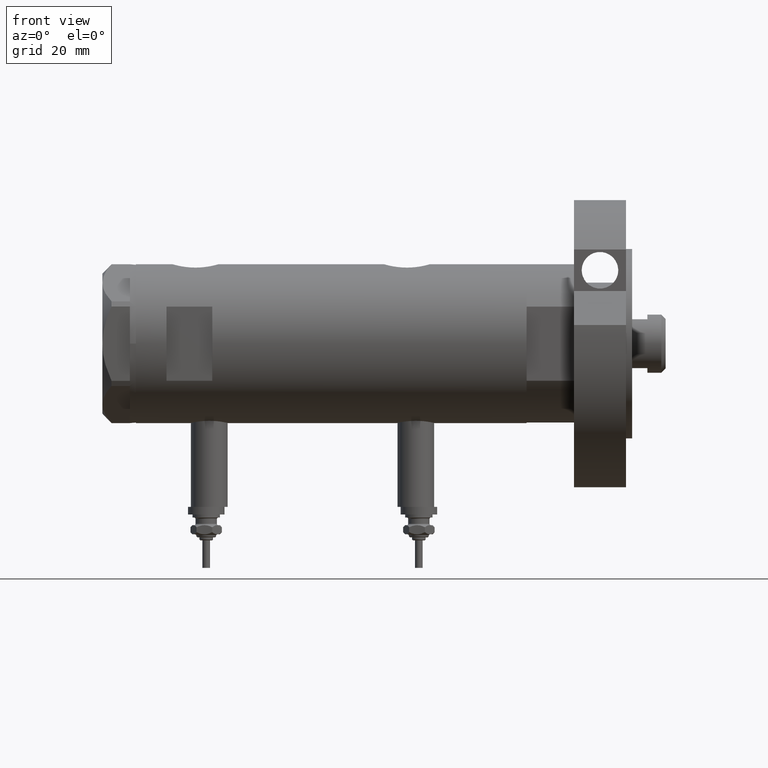
[diagram: clean part render]
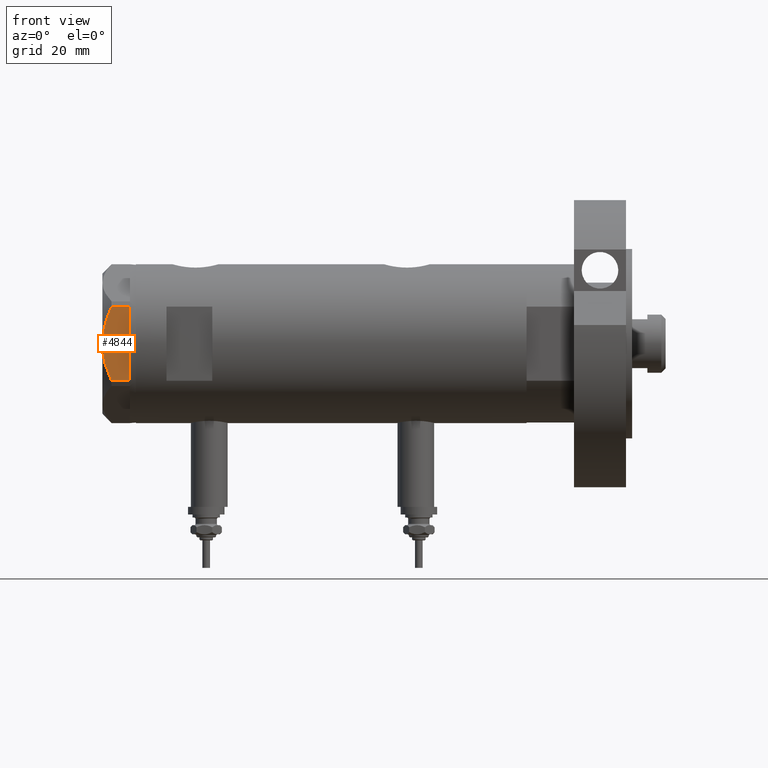
[diagram: same view with one face highlighted and labeled with its STEP entity id]
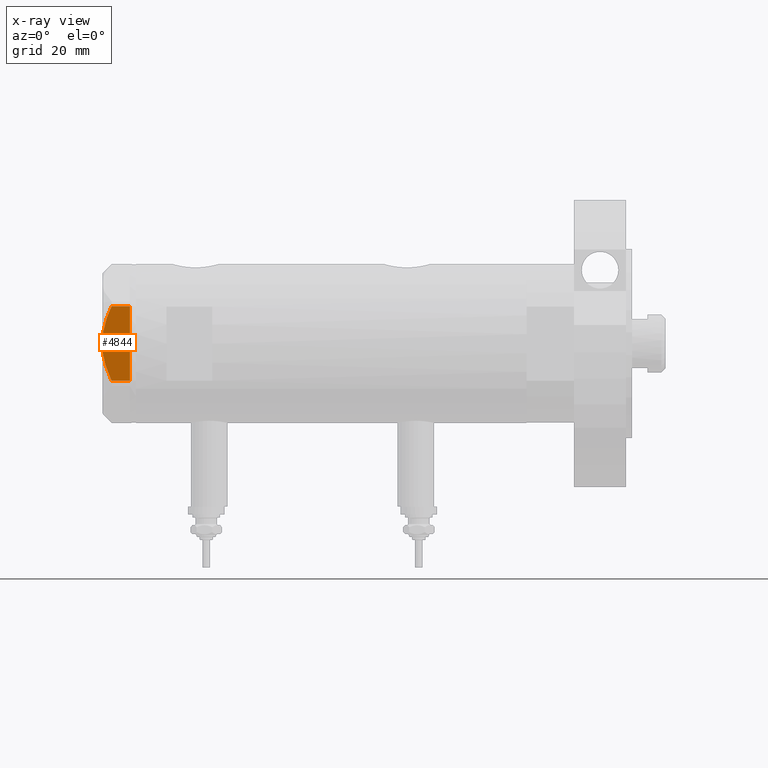
[diagram: x-ray of the same camera — body ghosted, the highlighted face saturated]
A machine part, front view. The second image highlights one B-rep face of the part: STEP entity #4844.
The next image is the same camera in x-ray: the body ghosted, the highlighted face saturated — about 0% of this face is hidden behind the body in this view.
In plain terms, the highlighted planar face has unit normal (-0, 1, -0).
Its self-contained STEP definition (entity closure, byte-faithful):
#17 = VERTEX_POINT ( 'NONE', #3609 ) ;
#65 = CARTESIAN_POINT ( 'NONE',  ( -22.99999999999995737, -0.5295934231897764244, 9.000000000000092371 ) ) ;
#186 = CARTESIAN_POINT ( 'NONE',  ( -22.99999999999999645, 13.27905619136132032, 9.000000000000000000 ) ) ;
#194 = DIRECTION ( 'NONE',  ( 3.527173405730720141E-15, -1.000000000000000000, 0.000000000000000000 ) ) ;
#217 = EDGE_CURVE ( 'NONE', #17, #1837, #3621, .T. ) ;
#564 = ORIENTED_EDGE ( 'NONE', *, *, #7742, .T. ) ;
#565 = DIRECTION ( 'NONE',  ( 0.000000000000000000, 0.000000000000000000, -1.000000000000000000 ) ) ;
#566 = LINE ( 'NONE', #5370, #7798 ) ;
#719 = CARTESIAN_POINT ( 'NONE',  ( -22.99999999999999645, 13.27905619136132032, 0.000000000000000000 ) ) ;
#749 = LINE ( 'NONE', #4447, #6011 ) ;
#1284 = ORIENTED_EDGE ( 'NONE', *, *, #2192, .T. ) ;
#1308 = CARTESIAN_POINT ( 'NONE',  ( -22.99999999999992895, -5.228918809624124364, 8.433337033849854336 ) ) ;
#1402 = PLANE ( 'NONE',  #6000 ) ;
#1480 = DIRECTION ( 'NONE',  ( 1.000000000000000000, 3.527173405730720141E-15, -0.000000000000000000 ) ) ;
#1645 = CARTESIAN_POINT ( 'NONE',  ( -22.99999999999990763, -12.15905619136147564, 5.983800287807627072 ) ) ;
#1837 = VERTEX_POINT ( 'NONE', #5002 ) ;
#1886 = CARTESIAN_POINT ( 'NONE',  ( -22.99999999999992184, -7.253003311474388148, 7.903276810347638737 ) ) ;
#1926 = CARTESIAN_POINT ( 'NONE',  ( -22.99999999999991829, -8.252113629125268801, 7.581642062680223226 ) ) ;
#1996 = DIRECTION ( 'NONE',  ( 3.527173405730720141E-15, -1.000000000000000000, 0.000000000000000000 ) ) ;
#2014 = FACE_OUTER_BOUND ( 'NONE', #4565, .T. ) ;
#2163 = CARTESIAN_POINT ( 'NONE',  ( -23.00000000000004619, -8.112498833180673323E-14, 9.000000000000000000 ) ) ;
#2192 = EDGE_CURVE ( 'NONE', #6781, #5021, #6774, .T. ) ;
#2196 = CARTESIAN_POINT ( 'NONE',  ( -22.99999999999998934, 11.20825071633916359, 6.428173306378450746 ) ) ;
#2214 = B_SPLINE_CURVE_WITH_KNOTS ( 'NONE', 3,
 ( #2671, #2196, #6340, #6993, #3901, #7681, #4664, #5107, #5182, #2778 ),
 .UNSPECIFIED., .F., .F.,
 ( 4, 2, 2, 2, 4 ),
 ( 0.03516523594057416324, 0.03831677594541234300, 0.03989254594783143981, 0.04146831595025052969, 0.04777139595992690307 ),
 .UNSPECIFIED. ) ;
#2457 = LINE ( 'NONE', #4269, #3321 ) ;
#2517 = CARTESIAN_POINT ( 'NONE',  ( -22.99999999999993960, -2.119709279061923191, 8.908535212173198659 ) ) ;
#2671 = CARTESIAN_POINT ( 'NONE',  ( -22.99999999999999289, 12.15905619136133176, 5.983800287807616414 ) ) ;
#2778 = CARTESIAN_POINT ( 'NONE',  ( -23.00000000000004619, -8.112498833180673323E-14, 9.000000000000000000 ) ) ;
#3017 = CARTESIAN_POINT ( 'NONE',  ( -22.99999999999993960, -2.643615312305158671, 8.854304560636265364 ) ) ;
#3061 = ORIENTED_EDGE ( 'NONE', *, *, #7816, .F. ) ;
#3156 = CARTESIAN_POINT ( 'NONE',  ( -22.99999999999995026, -1.063773509315737442, 8.981438083606830602 ) ) ;
#3321 = VECTOR ( 'NONE', #4363, 1000.000000000000000 ) ;
#3609 = CARTESIAN_POINT ( 'NONE',  ( -22.99999999999999289, 12.15905619136133176, 5.983800287807616414 ) ) ;
#3621 = LINE ( 'NONE', #6054, #5586 ) ;
#3654 = EDGE_CURVE ( 'NONE', #7501, #6781, #566, .T. ) ;
#3832 = DIRECTION ( 'NONE',  ( -3.527173405730720141E-15, 1.000000000000000000, 0.000000000000000000 ) ) ;
#3901 = CARTESIAN_POINT ( 'NONE',  ( -22.99999999999998224, 8.246028007352361300, 7.571131808646907935 ) ) ;
#3922 = EDGE_CURVE ( 'NONE', #17, #6593, #2214, .T. ) ;
#3923 = VECTOR ( 'NONE', #1996, 1000.000000000000000 ) ;
#4269 = CARTESIAN_POINT ( 'NONE',  ( -22.99999999999990763, -12.15905619136147386, 9.000000000000000000 ) ) ;
#4341 = CARTESIAN_POINT ( 'NONE',  ( -22.99999999999993250, -4.203926054641964782, 8.641681223122507305 ) ) ;
#4363 = DIRECTION ( 'NONE',  ( 0.000000000000000000, 0.000000000000000000, 1.000000000000000000 ) ) ;
#4447 = CARTESIAN_POINT ( 'NONE',  ( -22.99999999999999645, 13.27905619136132032, 0.000000000000000000 ) ) ;
#4565 = EDGE_LOOP ( 'NONE', ( #6810, #7162, #564, #7234, #1284, #6748, #3061 ) ) ;
#4664 = CARTESIAN_POINT ( 'NONE',  ( -22.99999999999997158, 6.734330413511419700, 8.039389741252668031 ) ) ;
#4729 = EDGE_CURVE ( 'NONE', #5021, #6490, #2457, .T. ) ;
#4844 = ADVANCED_FACE ( 'NONE', ( #2014 ), #1402, .F. ) ;
#4909 = CARTESIAN_POINT ( 'NONE',  ( -22.99999999999991118, -10.22738952213794761, 6.832470313674783746 ) ) ;
#4947 = CARTESIAN_POINT ( 'NONE',  ( -22.99999999999991829, -9.734726261263297431, 7.028924700095662281 ) ) ;
#5002 = CARTESIAN_POINT ( 'NONE',  ( -22.99999999999999289, 12.15905619136133176, 0.000000000000000000 ) ) ;
#5021 = VERTEX_POINT ( 'NONE', #6457 ) ;
#5107 = CARTESIAN_POINT ( 'NONE',  ( -22.99999999999996803, 4.194757081058972936, 8.703000351525203016 ) ) ;
#5182 = CARTESIAN_POINT ( 'NONE',  ( -22.99999999999995381, 2.122900714018063795, 9.000000000000092371 ) ) ;
#5370 = CARTESIAN_POINT ( 'NONE',  ( -22.99999999999999645, 13.27905619136132032, 0.000000000000000000 ) ) ;
#5457 = CARTESIAN_POINT ( 'NONE',  ( -22.99999999999991118, -11.20155944044816287, 6.421102682632757741 ) ) ;
#5505 = CARTESIAN_POINT ( 'NONE',  ( -22.99999999999990763, -11.68282849742335827, 6.206372352695425754 ) ) ;
#5520 = CARTESIAN_POINT ( 'NONE',  ( -22.99999999999990763, -12.12435565298232021, 0.000000000000000000 ) ) ;
#5557 = CARTESIAN_POINT ( 'NONE',  ( -23.00000000000004619, -8.112498833180673323E-14, 9.000000000000000000 ) ) ;
#5586 = VECTOR ( 'NONE', #565, 1000.000000000000000 ) ;
#6000 = AXIS2_PLACEMENT_3D ( 'NONE', #186, #1480, #3832 ) ;
#6011 = VECTOR ( 'NONE', #194, 1000.000000000000000 ) ;
#6054 = CARTESIAN_POINT ( 'NONE',  ( -22.99999999999999289, 12.15905619136133176, 9.000000000000000000 ) ) ;
#6082 = B_SPLINE_CURVE_WITH_KNOTS ( 'NONE', 3,
 ( #5557, #65, #3156, #2517, #3017, #4341, #1308, #1886, #1926, #4947, #4909, #5457, #5505, #7933 ),
 .UNSPECIFIED., .F., .F.,
 ( 4, 2, 2, 2, 2, 2, 4 ),
 ( 0.04777139595992690307, 0.04934380568070229761, 0.05091621540147769215, 0.05406103484302848122, 0.05720585428457927030, 0.05877826400535466483, 0.06035067372613005937 ),
 .UNSPECIFIED. ) ;
#6099 = DIRECTION ( 'NONE',  ( 3.527173405730720141E-15, -1.000000000000000000, 0.000000000000000000 ) ) ;
#6340 = CARTESIAN_POINT ( 'NONE',  ( -22.99999999999998579, 10.23890159976122050, 6.840812428290914404 ) ) ;
#6457 = CARTESIAN_POINT ( 'NONE',  ( -22.99999999999990763, -12.15905619136147386, 0.000000000000000000 ) ) ;
#6490 = VERTEX_POINT ( 'NONE', #1645 ) ;
#6593 = VERTEX_POINT ( 'NONE', #2163 ) ;
#6748 = ORIENTED_EDGE ( 'NONE', *, *, #4729, .T. ) ;
#6774 = LINE ( 'NONE', #719, #3923 ) ;
#6781 = VERTEX_POINT ( 'NONE', #5520 ) ;
#6810 = ORIENTED_EDGE ( 'NONE', *, *, #3922, .F. ) ;
#6993 = CARTESIAN_POINT ( 'NONE',  ( -22.99999999999997513, 8.748091966971378142, 7.396818978284571244 ) ) ;
#7162 = ORIENTED_EDGE ( 'NONE', *, *, #217, .T. ) ;
#7234 = ORIENTED_EDGE ( 'NONE', *, *, #3654, .T. ) ;
#7353 = CARTESIAN_POINT ( 'NONE',  ( -22.99999999999999289, 12.12435565298215856, 0.000000000000000000 ) ) ;
#7501 = VERTEX_POINT ( 'NONE', #7353 ) ;
#7681 = CARTESIAN_POINT ( 'NONE',  ( -22.99999999999996803, 7.239756182922199024, 7.892186063422847120 ) ) ;
#7742 = EDGE_CURVE ( 'NONE', #1837, #7501, #749, .T. ) ;
#7798 = VECTOR ( 'NONE', #6099, 1000.000000000000000 ) ;
#7816 = EDGE_CURVE ( 'NONE', #6593, #6490, #6082, .T. ) ;
#7933 = CARTESIAN_POINT ( 'NONE',  ( -22.99999999999990763, -12.15905619136147564, 5.983800287807627072 ) ) ;